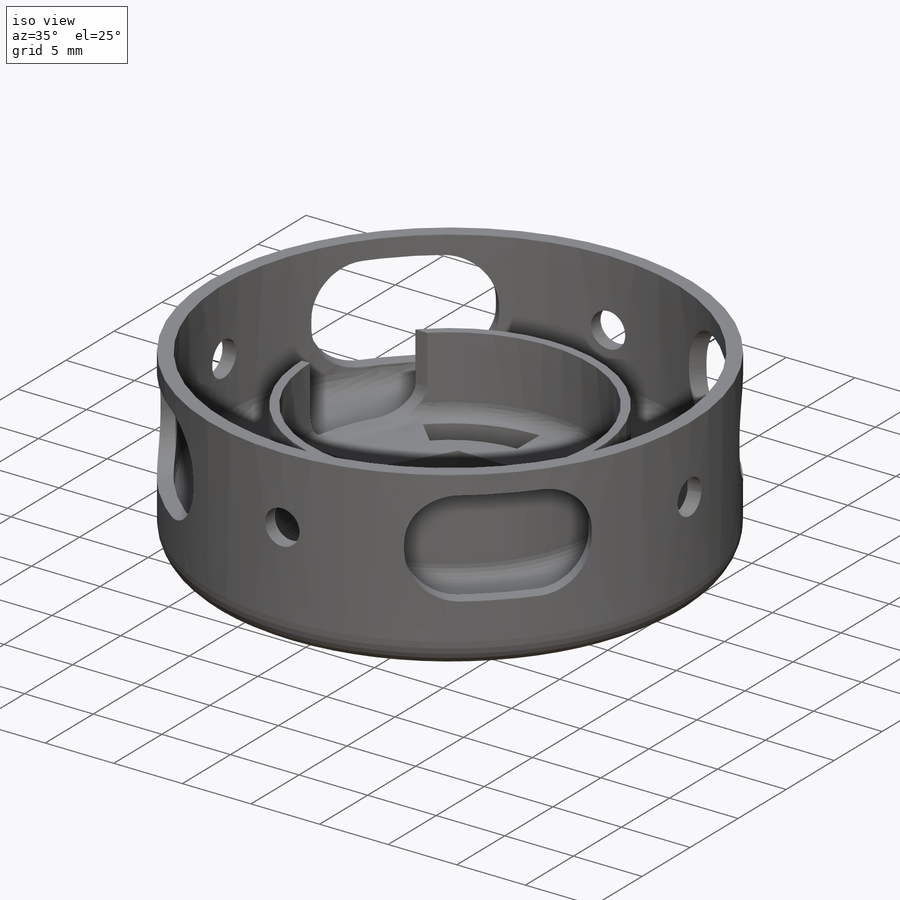
[diagram: iso view]
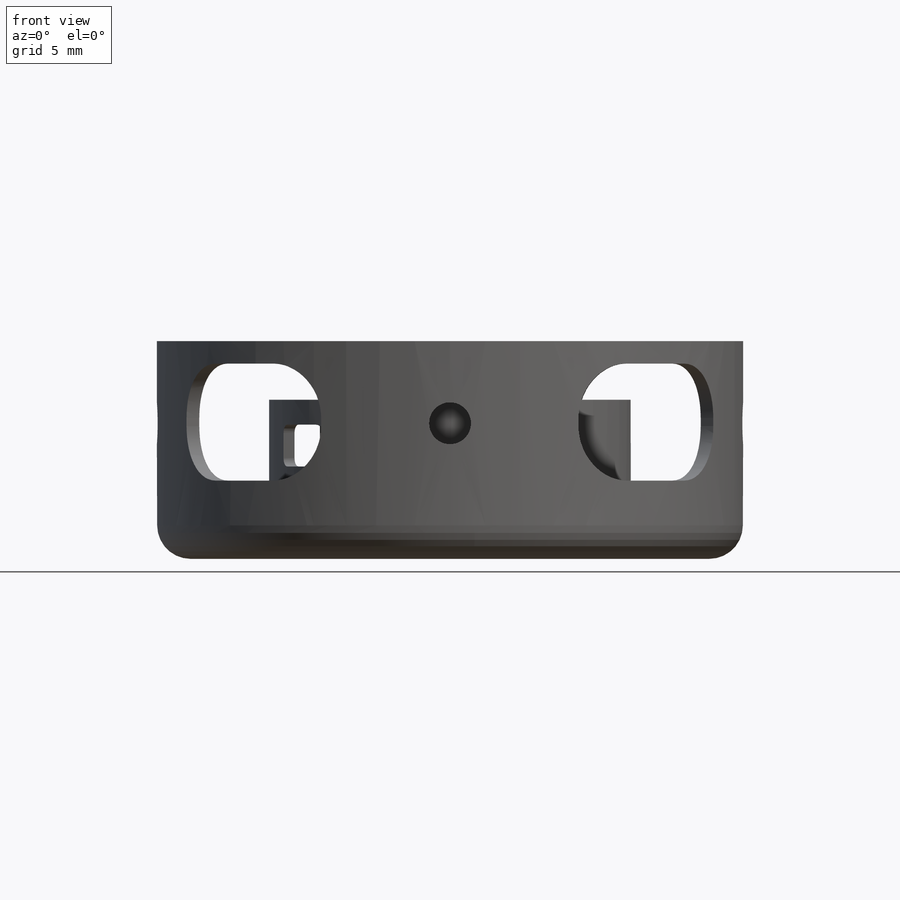
[diagram: front view]
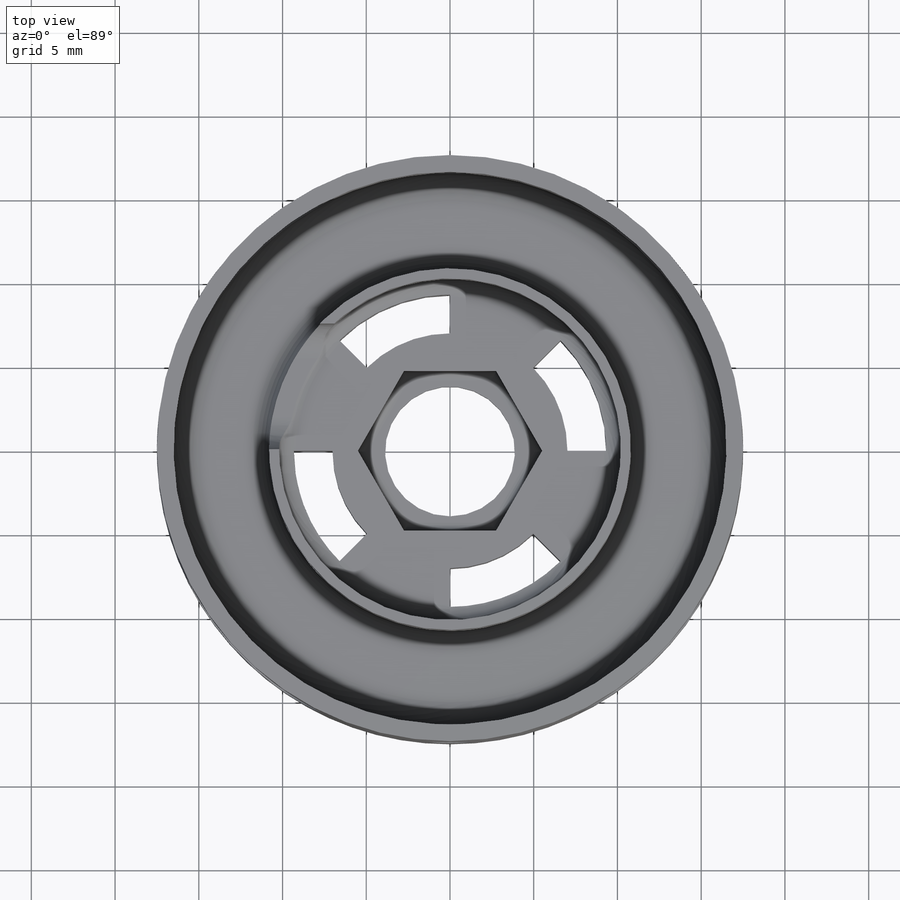
[diagram: top view]
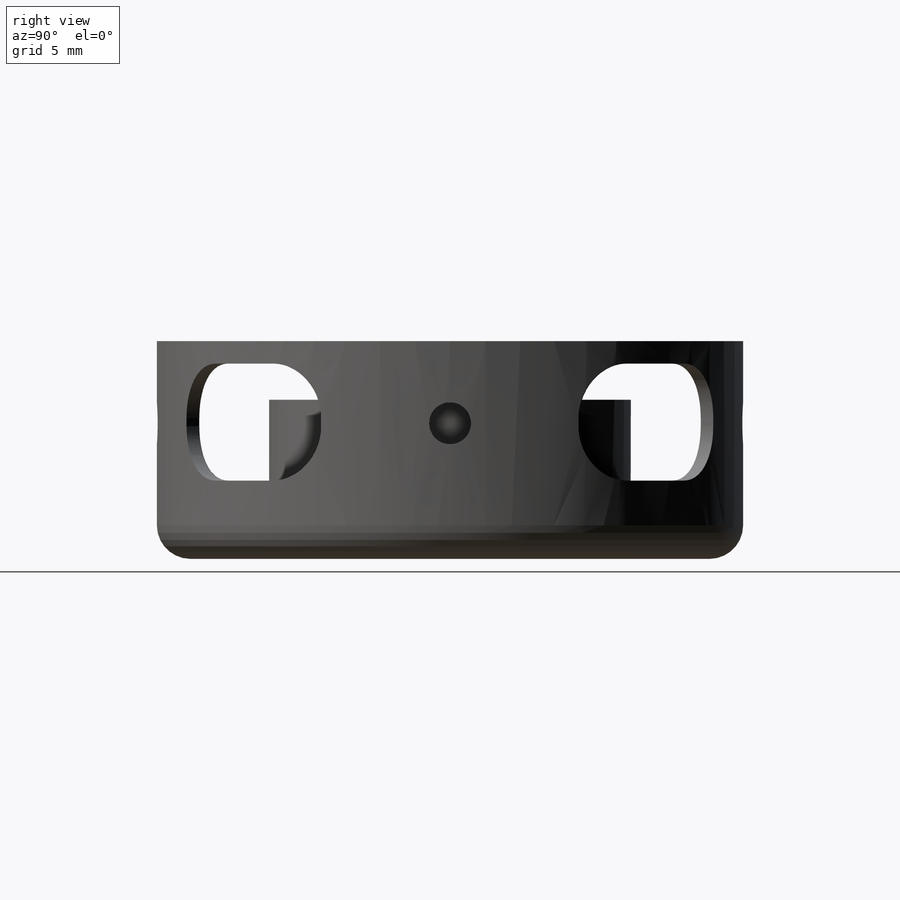
[diagram: right view]
SOLIDWORKS PART (.sldprt)
format: sldprt  version: not decoded by parser v0  size: 542,720 bytes
history: native  units: mm
features: sketch x12, cut_extrude x9, fillet x7, plane x4, extrude x3, pattern_circular x3, material x1, mirror x1 (+12 scaffold rows collapsed)
feature tree (52):
  scaffold x12  (default folders/planes/origin — collapsed)
  material  "Material <not specified>"
  sketch  "Sketch3"  dims[D1=17.0mm]
  extrude  "Boss-Extrude2"  Depth=3mm
  plane  "Plane1"  Offset=1.5mm
  sketch  "Sketch6"  dims[D1=~3.46318mm]
  cut_extrude  "Cut-Extrude2"  Depth=18mm
  fillet  "Fillet1"  Radius=2mm
  sketch  "Sketch7"  dims[D1=11.1557mm]
  extrude  "Boss-Extrude3"  Depth=6.5mm
  sketch  "Sketch9"  dims[D1=4.9mm]
  cut_extrude  "Cut-Extrude3"  Depth=5.6mm
  sketch  "Sketch5"  dims[c1.D1=5.5mm c2.D1=~61.366461deg]
  cut_extrude  "Cut-Extrude1"  Depth=18mm
  fillet  "Fillet2"  Radius=1mm
  plane  "Plane2"
  sketch  "Sketch11"  dims[D1=7.5mm]
  cut_extrude  "Cut-Extrude4"  Depth=4.6mm
  sketch  "Sketch12"  dims[D3=1.25mm D1=4.7mm D2=2.5mm]
  cut_extrude  "Cut-Extrude5"  Depth=4.6mm
  fillet  "Fillet3"  Radius=2mm
  fillet  "Fillet4"  Radius=0.5mm
  sketch  "Sketch14"  dims[D5=5.2mm D1=2.0mm D2=2.0mm D3=1.0mm D4=1.0mm]
  cut_extrude  "Cut-Extrude6"  Depth=17.6mm
  mirror  "Mirror1"
  fillet  "Fillet5"  Radius=0.5mm
  sketch  "Sketch15"  dims[D1=16.0mm]
  extrude  "Boss-Extrude4"  Depth=10mm
  fillet  "Fillet6"  Radius=1.5mm
  plane  "Plane3"
  sketch  "Sketch17"  dims[D1=1.5mm]
  cut_extrude  "Cut-Extrude7"  Depth=3mm
  pattern_circular  "CirPattern1"  Count=4 Angle=90deg
  sketch  "Sketch18"
  cut_extrude  "Cut-Extrude8"  Depth=15mm
  pattern_circular  "CirPattern2"  Count=4 Angle=90deg
  plane  "Plane4"
  sketch  "Sketch20"
  cut_extrude  "Cut-Extrude9"  Depth=3mm
  fillet  "Fillet7"  Radius=3.25mm
  pattern_circular  "CirPattern4"  Count=4 Angle=90deg
decode coverage: 32 of 35 modeling features carry decoded parameters
note: ~ marks probable driven/reference dimensions
note: suppression state not decoded; provenance and decode notes live in map.json
